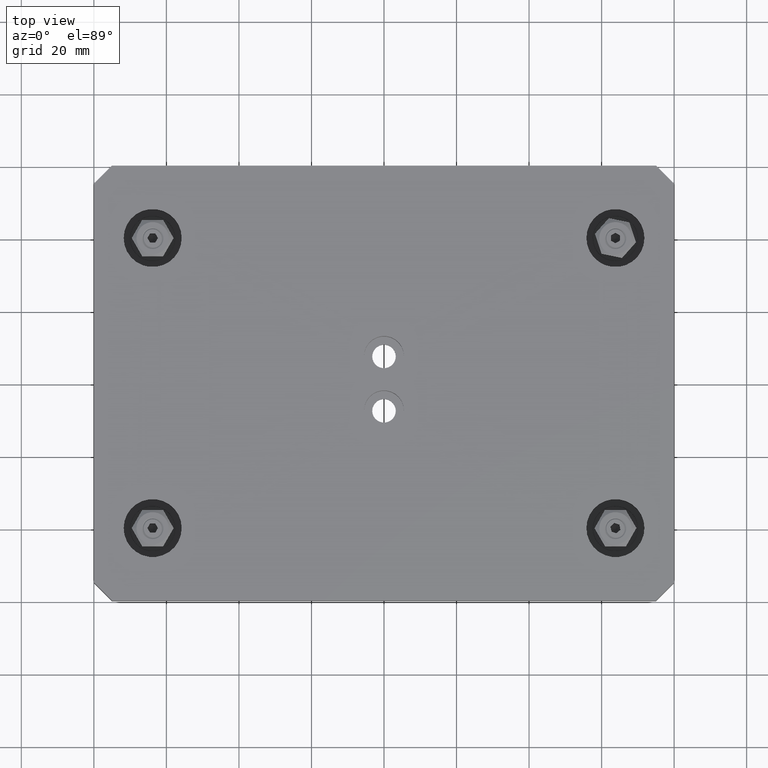
[diagram: clean part render]
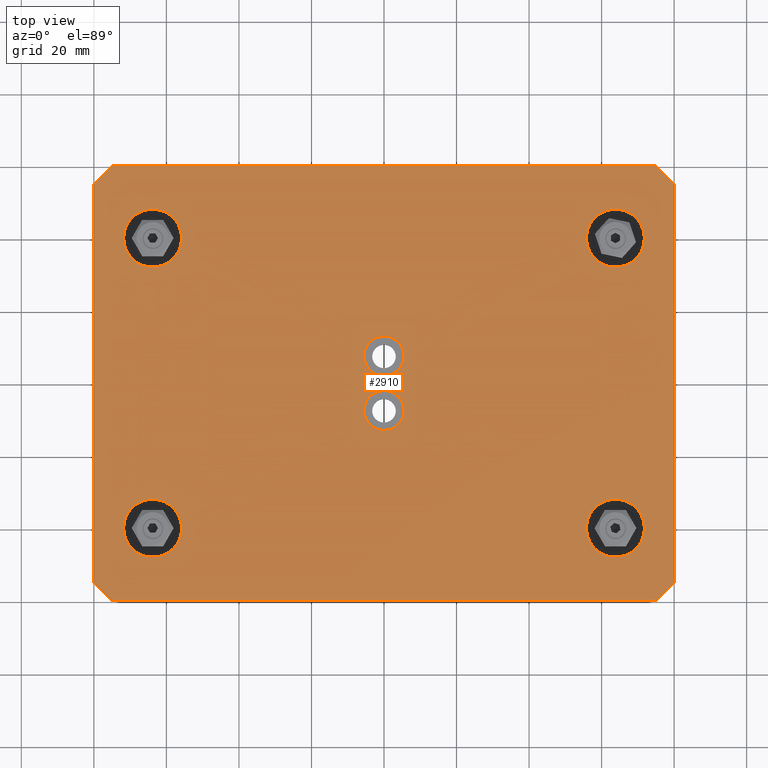
[diagram: same view with one face highlighted and labeled with its STEP entity id]
A machine part, top view. The second image highlights one B-rep face of the part: STEP entity #2910.
In plain terms, the highlighted planar face has unit normal (0, 0, 1).
Its self-contained STEP definition (entity closure, byte-faithful):
#245=FACE_BOUND('',#655,.T.);
#246=FACE_BOUND('',#656,.T.);
#247=FACE_BOUND('',#657,.T.);
#248=FACE_BOUND('',#658,.T.);
#249=FACE_BOUND('',#659,.T.);
#250=FACE_BOUND('',#660,.T.);
#283=CIRCLE('',#3308,5.5);
#286=CIRCLE('',#3314,5.5);
#289=CIRCLE('',#3320,8.);
#292=CIRCLE('',#3326,8.);
#295=CIRCLE('',#3332,8.);
#298=CIRCLE('',#3338,8.);
#456=FACE_OUTER_BOUND('',#654,.T.);
#654=EDGE_LOOP('',(#2069,#2070,#2071,#2072,#2073,#2074,#2075,#2076));
#655=EDGE_LOOP('',(#2077));
#656=EDGE_LOOP('',(#2078));
#657=EDGE_LOOP('',(#2079));
#658=EDGE_LOOP('',(#2080));
#659=EDGE_LOOP('',(#2081));
#660=EDGE_LOOP('',(#2082));
#843=LINE('',#4620,#1071);
#849=LINE('',#4631,#1077);
#856=LINE('',#4659,#1084);
#859=LINE('',#4664,#1087);
#861=LINE('',#4668,#1089);
#863=LINE('',#4672,#1091);
#877=LINE('',#4741,#1105);
#878=LINE('',#4743,#1106);
#1071=VECTOR('',#3661,10.);
#1077=VECTOR('',#3669,10.);
#1084=VECTOR('',#3692,10.);
#1087=VECTOR('',#3697,10.);
#1089=VECTOR('',#3701,10.);
#1091=VECTOR('',#3705,10.);
#1105=VECTOR('',#3793,10.);
#1106=VECTOR('',#3796,10.);
#1299=VERTEX_POINT('',#4618);
#1300=VERTEX_POINT('',#4619);
#1304=VERTEX_POINT('',#4629);
#1316=VERTEX_POINT('',#4657);
#1317=VERTEX_POINT('',#4658);
#1318=VERTEX_POINT('',#4663);
#1319=VERTEX_POINT('',#4667);
#1320=VERTEX_POINT('',#4671);
#1323=VERTEX_POINT('',#4680);
#1326=VERTEX_POINT('',#4691);
#1329=VERTEX_POINT('',#4702);
#1332=VERTEX_POINT('',#4713);
#1335=VERTEX_POINT('',#4724);
#1338=VERTEX_POINT('',#4735);
#1557=EDGE_CURVE('',#1299,#1300,#843,.T.);
#1563=EDGE_CURVE('',#1304,#1299,#849,.T.);
#1576=EDGE_CURVE('',#1316,#1317,#856,.T.);
#1579=EDGE_CURVE('',#1317,#1318,#859,.T.);
#1581=EDGE_CURVE('',#1318,#1319,#861,.T.);
#1583=EDGE_CURVE('',#1320,#1304,#863,.T.);
#1587=EDGE_CURVE('',#1323,#1323,#283,.T.);
#1592=EDGE_CURVE('',#1326,#1326,#286,.T.);
#1597=EDGE_CURVE('',#1329,#1329,#289,.T.);
#1602=EDGE_CURVE('',#1332,#1332,#292,.T.);
#1607=EDGE_CURVE('',#1335,#1335,#295,.T.);
#1612=EDGE_CURVE('',#1338,#1338,#298,.T.);
#1615=EDGE_CURVE('',#1319,#1320,#877,.T.);
#1616=EDGE_CURVE('',#1300,#1316,#878,.T.);
#2069=ORIENTED_EDGE('',*,*,#1557,.F.);
#2070=ORIENTED_EDGE('',*,*,#1563,.F.);
#2071=ORIENTED_EDGE('',*,*,#1583,.F.);
#2072=ORIENTED_EDGE('',*,*,#1615,.F.);
#2073=ORIENTED_EDGE('',*,*,#1581,.F.);
#2074=ORIENTED_EDGE('',*,*,#1579,.F.);
#2075=ORIENTED_EDGE('',*,*,#1576,.F.);
#2076=ORIENTED_EDGE('',*,*,#1616,.F.);
#2077=ORIENTED_EDGE('',*,*,#1587,.T.);
#2078=ORIENTED_EDGE('',*,*,#1592,.T.);
#2079=ORIENTED_EDGE('',*,*,#1597,.T.);
#2080=ORIENTED_EDGE('',*,*,#1602,.T.);
#2081=ORIENTED_EDGE('',*,*,#1607,.T.);
#2082=ORIENTED_EDGE('',*,*,#1612,.T.);
#2790=PLANE('',#3342);
#2910=ADVANCED_FACE('',(#456,#245,#246,#247,#248,#249,#250),#2790,.T.);
#3308=AXIS2_PLACEMENT_3D('',#4681,#3715,#3716);
#3314=AXIS2_PLACEMENT_3D('',#4692,#3729,#3730);
#3320=AXIS2_PLACEMENT_3D('',#4703,#3743,#3744);
#3326=AXIS2_PLACEMENT_3D('',#4714,#3757,#3758);
#3332=AXIS2_PLACEMENT_3D('',#4725,#3771,#3772);
#3338=AXIS2_PLACEMENT_3D('',#4736,#3785,#3786);
#3342=AXIS2_PLACEMENT_3D('',#4744,#3797,#3798);
#3661=DIRECTION('',(0.707106781186548,0.707106781186548,0.));
#3669=DIRECTION('',(0.,1.,0.));
#3692=DIRECTION('',(0.707106781186548,-0.707106781186548,0.));
#3697=DIRECTION('',(0.,-1.,0.));
#3701=DIRECTION('',(-0.707106781186548,-0.707106781186548,0.));
#3705=DIRECTION('',(-0.707106781186548,0.707106781186548,0.));
#3715=DIRECTION('center_axis',(0.,0.,-1.));
#3716=DIRECTION('ref_axis',(1.,0.,0.));
#3729=DIRECTION('center_axis',(0.,0.,-1.));
#3730=DIRECTION('ref_axis',(1.,0.,0.));
#3743=DIRECTION('center_axis',(0.,0.,-1.));
#3744=DIRECTION('ref_axis',(1.,0.,0.));
#3757=DIRECTION('center_axis',(0.,0.,-1.));
#3758=DIRECTION('ref_axis',(1.,0.,0.));
#3771=DIRECTION('center_axis',(0.,0.,-1.));
#3772=DIRECTION('ref_axis',(1.,0.,0.));
#3785=DIRECTION('center_axis',(0.,0.,-1.));
#3786=DIRECTION('ref_axis',(1.,0.,0.));
#3793=DIRECTION('',(-1.,0.,0.));
#3796=DIRECTION('',(1.,0.,0.));
#3797=DIRECTION('center_axis',(0.,0.,1.));
#3798=DIRECTION('ref_axis',(1.,0.,0.));
#4618=CARTESIAN_POINT('',(-80.,55.,10.));
#4619=CARTESIAN_POINT('',(-75.,60.,10.));
#4620=CARTESIAN_POINT('',(-72.5,62.5,10.));
#4629=CARTESIAN_POINT('',(-80.,-55.,10.));
#4631=CARTESIAN_POINT('',(-80.,-60.,10.));
#4657=CARTESIAN_POINT('',(75.,60.,10.));
#4658=CARTESIAN_POINT('',(80.,55.,10.));
#4659=CARTESIAN_POINT('',(72.5,62.5,10.));
#4663=CARTESIAN_POINT('',(80.,-55.,10.));
#4664=CARTESIAN_POINT('',(80.,60.,10.));
#4667=CARTESIAN_POINT('',(75.,-60.,10.));
#4668=CARTESIAN_POINT('',(72.5,-62.5,10.));
#4671=CARTESIAN_POINT('',(-75.,-60.,10.));
#4672=CARTESIAN_POINT('',(-72.5,-62.5,10.));
#4680=CARTESIAN_POINT('',(-5.5,7.5,10.));
#4681=CARTESIAN_POINT('Origin',(0.,7.5,10.));
#4691=CARTESIAN_POINT('',(-5.5,-7.5,10.));
#4692=CARTESIAN_POINT('Origin',(0.,-7.5,10.));
#4702=CARTESIAN_POINT('',(55.8,-40.,10.));
#4703=CARTESIAN_POINT('Origin',(63.8,-40.,10.));
#4713=CARTESIAN_POINT('',(55.8,40.,10.));
#4714=CARTESIAN_POINT('Origin',(63.8,40.,10.));
#4724=CARTESIAN_POINT('',(-71.8,40.,10.));
#4725=CARTESIAN_POINT('Origin',(-63.8,40.,10.));
#4735=CARTESIAN_POINT('',(-71.8,-40.,10.));
#4736=CARTESIAN_POINT('Origin',(-63.8,-40.,10.));
#4741=CARTESIAN_POINT('',(80.,-60.,10.));
#4743=CARTESIAN_POINT('',(-80.,60.,10.));
#4744=CARTESIAN_POINT('Origin',(0.,3.46043540142906E-16,10.));